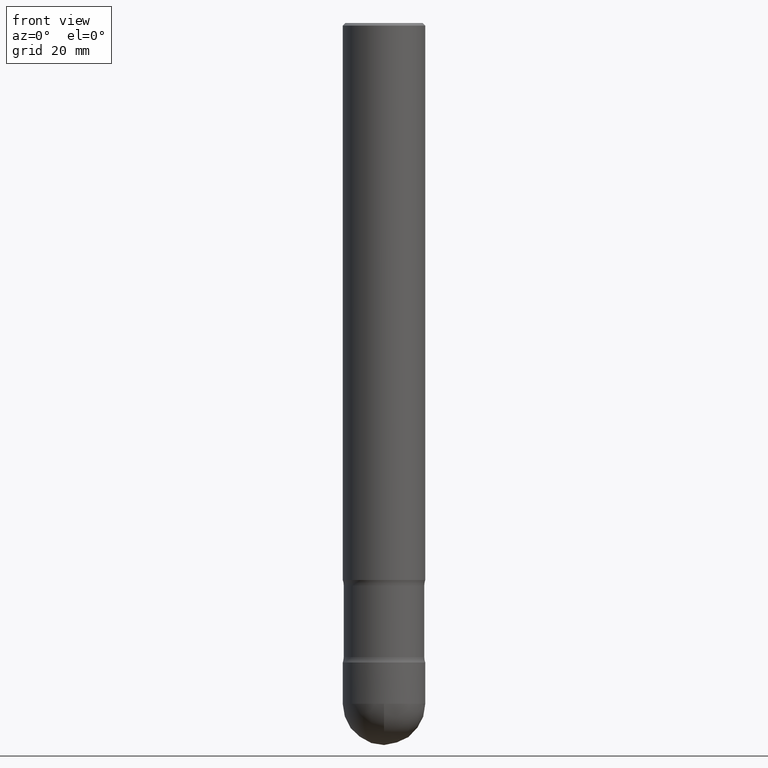
[diagram: clean part render]
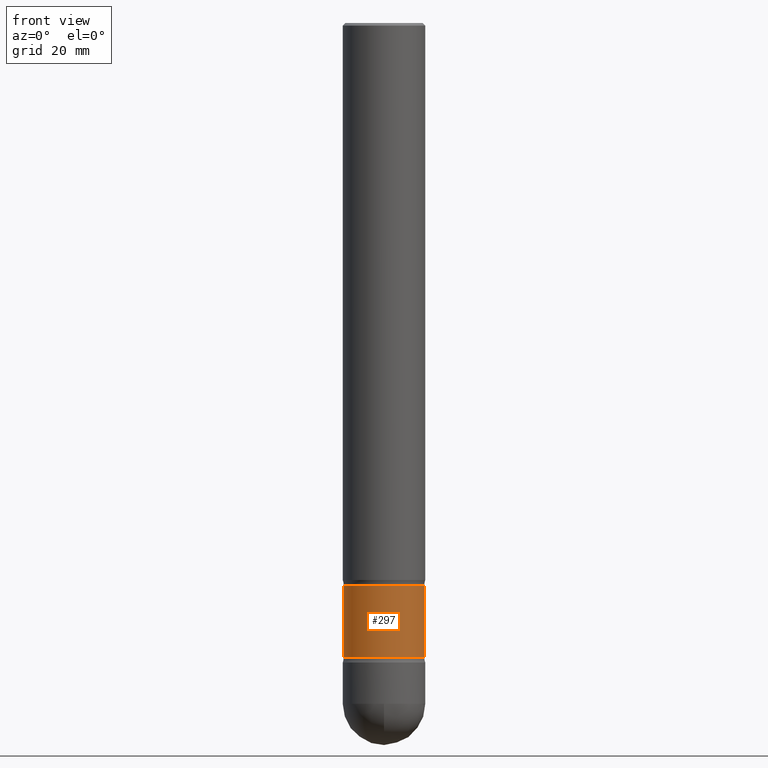
[diagram: same view with one face highlighted and labeled with its STEP entity id]
A machine part, front view. The second image highlights one B-rep face of the part: STEP entity #297.
In plain terms, the highlighted cylindrical surface (partial cylindrical patch) has radius 7.8105 mm, axis along (0, -0, -1).
Its self-contained STEP definition (entity closure, byte-faithful):
#47 = VERTEX_POINT ( 'NONE', #526 ) ;
#66 = CYLINDRICAL_SURFACE ( 'NONE', #353, 0.3074999999999992739 ) ;
#74 = LINE ( 'NONE', #193, #471 ) ;
#76 = LINE ( 'NONE', #126, #288 ) ;
#81 = DIRECTION ( 'NONE',  ( 2.445468806185136877E-29, -3.491481338843145188E-15, -1.000000000000000000 ) ) ;
#96 = ORIENTED_EDGE ( 'NONE', *, *, #391, .F. ) ;
#117 = CIRCLE ( 'NONE', #262, 0.3074999999999993294 ) ;
#119 = CARTESIAN_POINT ( 'NONE',  ( 1.193853416491521798E-28, -1.704506274809835102E-14, -4.881899999999999906 ) ) ;
#126 = CARTESIAN_POINT ( 'NONE',  ( 0.3074999999999992739, -1.915466588241308928E-14, -4.881899999999999906 ) ) ;
#140 = EDGE_CURVE ( 'NONE', #47, #516, #165, .T. ) ;
#165 = CIRCLE ( 'NONE', #480, 0.3074999999999992739 ) ;
#168 = EDGE_LOOP ( 'NONE', ( #96, #266, #296, #393 ) ) ;
#193 = CARTESIAN_POINT ( 'NONE',  ( -0.3074999999999992739, -1.489780172470982748E-14, -4.881899999999999906 ) ) ;
#202 = DIRECTION ( 'NONE',  ( 2.445468806185136597E-29, -3.491481338843145583E-15, -1.000000000000000000 ) ) ;
#219 = EDGE_CURVE ( 'NONE', #274, #342, #117, .T. ) ;
#239 = FACE_OUTER_BOUND ( 'NONE', #168, .T. ) ;
#246 = CARTESIAN_POINT ( 'NONE',  ( 0.3074999999999993294, -1.705514647122872669E-14, -4.294508793207993946 ) ) ;
#251 = CARTESIAN_POINT ( 'NONE',  ( -0.3074999999999993294, -1.284693628759498668E-14, -4.294508793207993946 ) ) ;
#262 = AXIS2_PLACEMENT_3D ( 'NONE', #339, #202, #417 ) ;
#266 = ORIENTED_EDGE ( 'NONE', *, *, #219, .T. ) ;
#274 = VERTEX_POINT ( 'NONE', #246 ) ;
#288 = VECTOR ( 'NONE', #345, 39.37007874015748143 ) ;
#296 = ORIENTED_EDGE ( 'NONE', *, *, #318, .T. ) ;
#297 = ADVANCED_FACE ( 'NONE', ( #239 ), #66, .T. ) ;
#318 = EDGE_CURVE ( 'NONE', #342, #516, #74, .T. ) ;
#339 = CARTESIAN_POINT ( 'NONE',  ( 1.050208729167792447E-28, -1.499419731098350864E-14, -4.294508793207993946 ) ) ;
#342 = VERTEX_POINT ( 'NONE', #251 ) ;
#345 = DIRECTION ( 'NONE',  ( 2.445468806185136877E-29, -3.491481338843145188E-15, -1.000000000000000000 ) ) ;
#353 = AXIS2_PLACEMENT_3D ( 'NONE', #119, #423, #464 ) ;
#391 = EDGE_CURVE ( 'NONE', #274, #47, #76, .T. ) ;
#393 = ORIENTED_EDGE ( 'NONE', *, *, #140, .F. ) ;
#417 = DIRECTION ( 'NONE',  ( -1.000000000000000000, 6.982962677686268288E-15, 0.000000000000000000 ) ) ;
#423 = DIRECTION ( 'NONE',  ( 2.445468806185136597E-29, -3.491481338843145583E-15, -1.000000000000000000 ) ) ;
#459 = DIRECTION ( 'NONE',  ( -1.000000000000000000, 6.982962677686269077E-15, 0.000000000000000000 ) ) ;
#464 = DIRECTION ( 'NONE',  ( -1.000000000000000000, 6.982962677686269077E-15, 0.000000000000000000 ) ) ;
#471 = VECTOR ( 'NONE', #81, 39.37007874015748143 ) ;
#480 = AXIS2_PLACEMENT_3D ( 'NONE', #502, #542, #459 ) ;
#498 = CARTESIAN_POINT ( 'NONE',  ( -0.3074999999999992739, -1.474938306648737525E-14, -4.839391206792005740 ) ) ;
#502 = CARTESIAN_POINT ( 'NONE',  ( 1.183458023713649301E-28, -1.689664408987589879E-14, -4.839391206792005740 ) ) ;
#516 = VERTEX_POINT ( 'NONE', #498 ) ;
#526 = CARTESIAN_POINT ( 'NONE',  ( 0.3074999999999992739, -1.805502383474444197E-14, -4.839391206792005740 ) ) ;
#542 = DIRECTION ( 'NONE',  ( 2.445468806185136597E-29, -3.491481338843145583E-15, -1.000000000000000000 ) ) ;